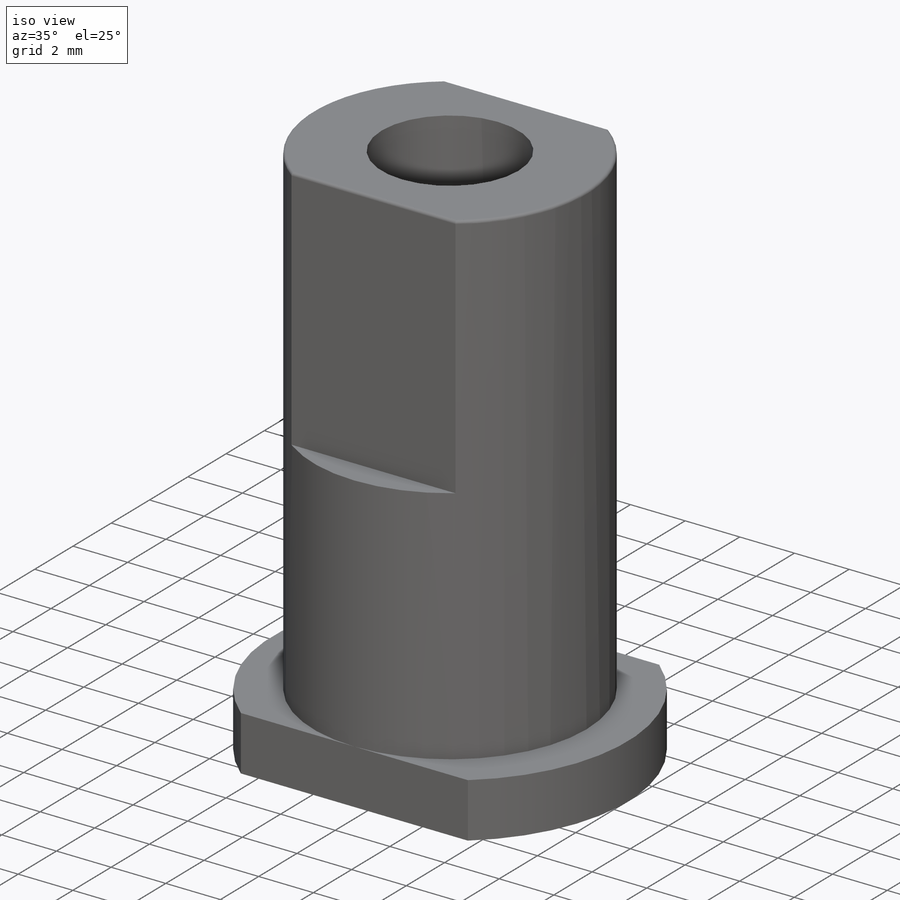
[diagram: iso view]
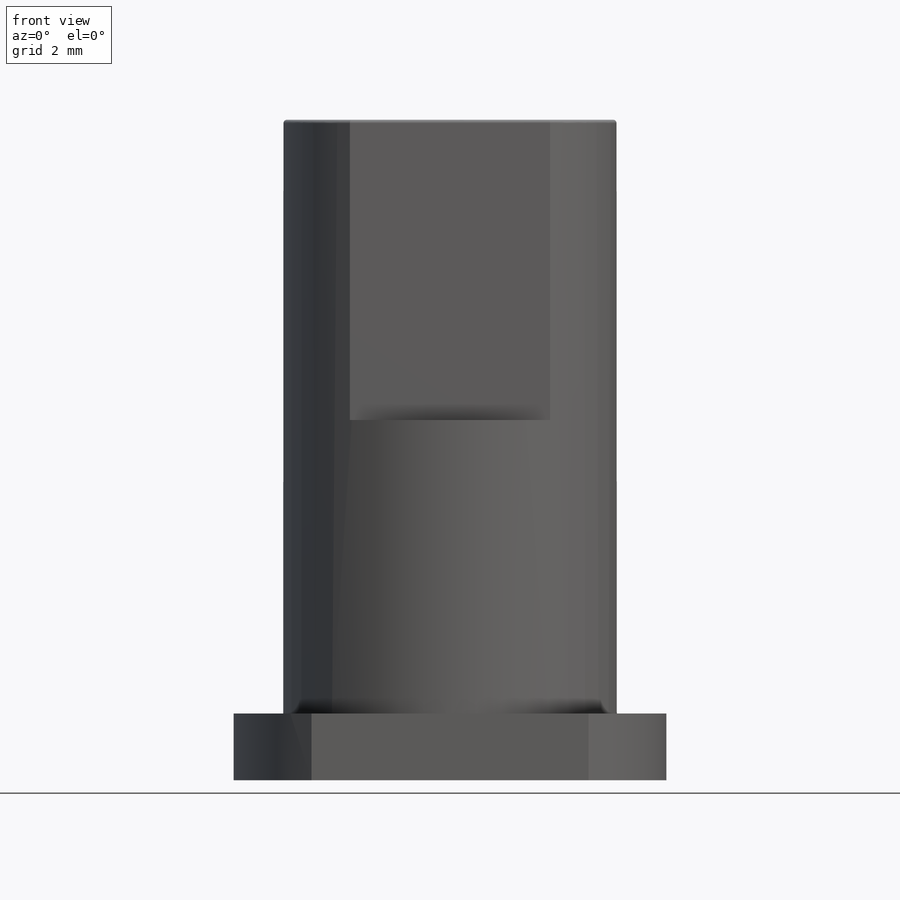
[diagram: front view]
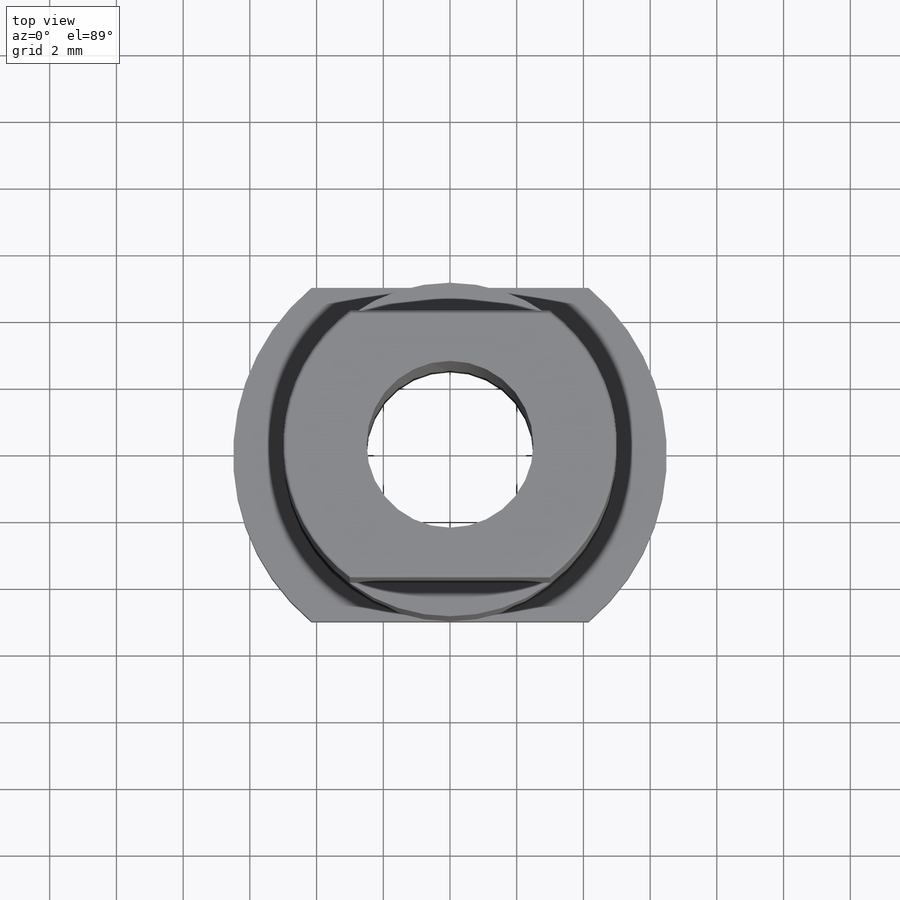
[diagram: top view]
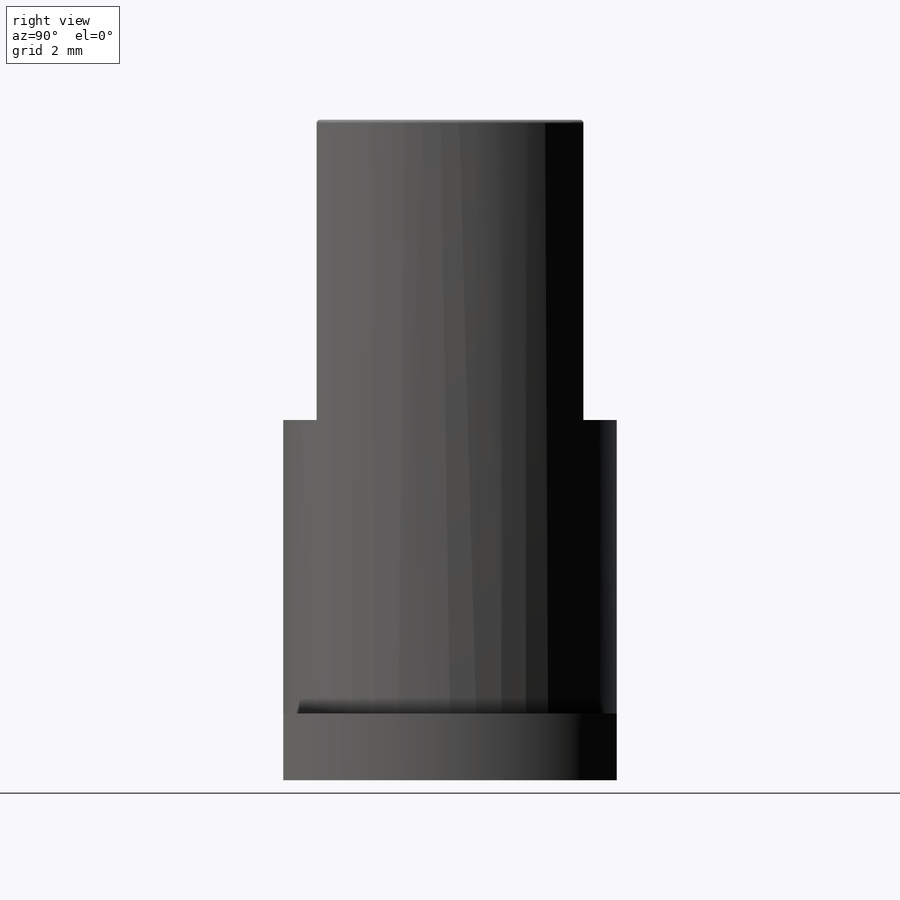
[diagram: right view]
SOLIDWORKS PART (.sldprt)
format: sldprt  version: not decoded by parser v0  size: 348,160 bytes
history: native  units: mm
features: plane x3, sketch x3, extrude x2, material x1, cut_extrude x1, fillet x1 (+10 scaffold rows collapsed)
feature tree (21):
  scaffold x10  (default folders/planes/origin — collapsed)
  material  "材质 <未指定>"
  plane  "前视基准面"
  plane  "上视基准面"
  plane  "右视基准面"
  sketch  "草图1"  dims[D1=10.0mm D2=5.0mm]
  extrude  "凸台-拉伸1"  Depth=17.8mm
  sketch  "草图3"  dims[D1=4.0mm D2=4.0mm]
  cut_extrude  "切除-拉伸1"  Depth=9mm
  sketch  "草图4"  dims[D1=13.0mm D2=10.0mm]
  extrude  "凸台-拉伸2"  Depth=2mm
  fillet  "圆角1"  Radius=0.1mm
decode coverage: 7 of 7 modeling features carry decoded parameters
note: suppression state not decoded; provenance and decode notes live in map.json
